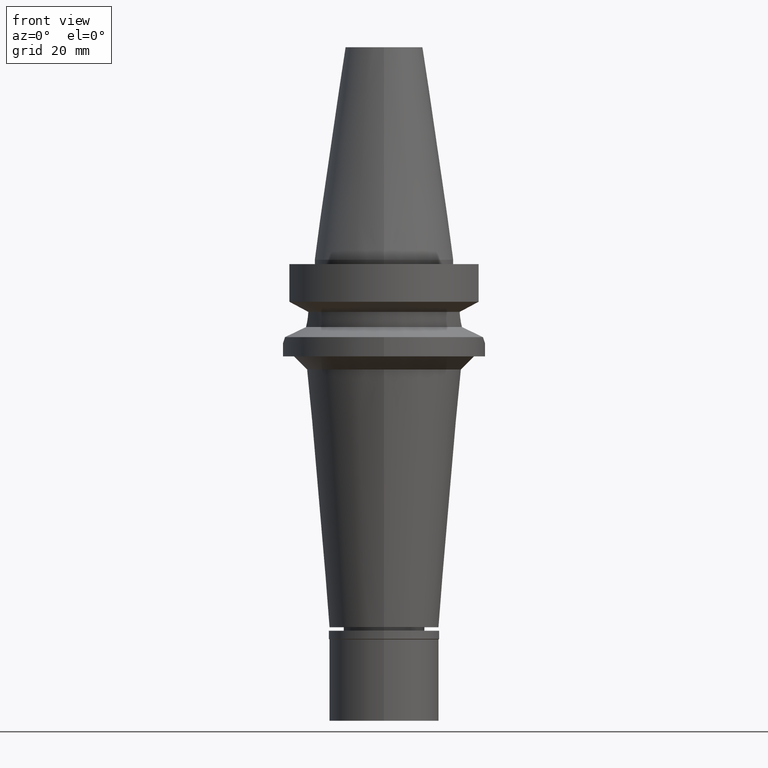
[diagram: clean part render]
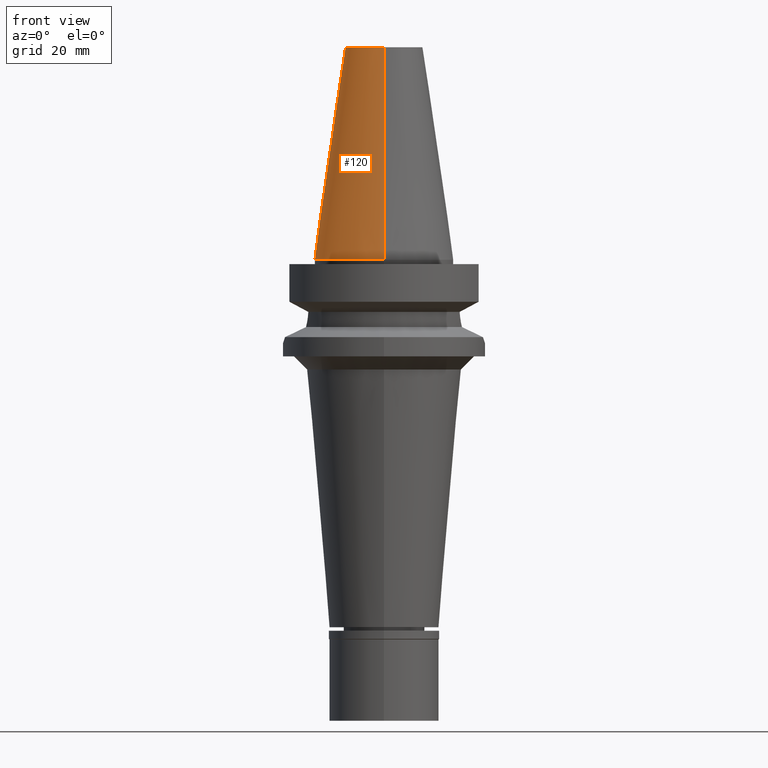
[diagram: same view with one face highlighted and labeled with its STEP entity id]
A machine part, front view. The second image highlights one B-rep face of the part: STEP entity #120.
In plain terms, the highlighted conical surface has half-angle 8.297 deg.
Its self-contained STEP definition (entity closure, byte-faithful):
#7 = EDGE_CURVE ( 'NONE', #2554, #3022, #360, .T. ) ;
#22 = CIRCLE ( 'NONE', #2929, 15.87500000000000000 ) ;
#27 = CARTESIAN_POINT ( 'NONE',  ( 0.0000000000000000000, -8.816791732783000768, 48.39999999999999858 ) ) ;
#45 = DIRECTION ( 'NONE',  ( 0.0000000000000000000, 0.1443043893539925626, -0.9895333461855498891 ) ) ;
#113 = VERTEX_POINT ( 'NONE', #2925 ) ;
#120 = ADVANCED_FACE ( 'NONE', ( #1758 ), #2560, .T. ) ;
#213 = VERTEX_POINT ( 'NONE', #536 ) ;
#324 = VECTOR ( 'NONE', #1599, 1000.000000000000114 ) ;
#360 = LINE ( 'NONE', #1795, #324 ) ;
#536 = CARTESIAN_POINT ( 'NONE',  ( 0.0000000000000000000, 8.816791732783000768, 48.39999999999999858 ) ) ;
#569 = EDGE_CURVE ( 'NONE', #3022, #113, #22, .T. ) ;
#689 = LINE ( 'NONE', #2858, #1481 ) ;
#761 = DIRECTION ( 'NONE',  ( 0.0000000000000000000, 0.0000000000000000000, -1.000000000000000000 ) ) ;
#809 = ORIENTED_EDGE ( 'NONE', *, *, #7, .F. ) ;
#864 = CARTESIAN_POINT ( 'NONE',  ( 0.0000000000000000000, -15.87500000000000000, -3.410605131648000255E-13 ) ) ;
#1037 = ORIENTED_EDGE ( 'NONE', *, *, #2398, .T. ) ;
#1228 = DIRECTION ( 'NONE',  ( 0.0000000000000000000, -1.000000000000000000, 0.0000000000000000000 ) ) ;
#1327 = CIRCLE ( 'NONE', #2949, 8.816791732783000768 ) ;
#1349 = DIRECTION ( 'NONE',  ( 0.0000000000000000000, -1.000000000000000000, 0.0000000000000000000 ) ) ;
#1481 = VECTOR ( 'NONE', #45, 1000.000000000000114 ) ;
#1521 = CARTESIAN_POINT ( 'NONE',  ( 0.0000000000000000000, 0.0000000000000000000, 24.19999999999999929 ) ) ;
#1584 = CARTESIAN_POINT ( 'NONE',  ( 0.0000000000000000000, 0.0000000000000000000, 48.39999999999999858 ) ) ;
#1599 = DIRECTION ( 'NONE',  ( 0.0000000000000000000, -0.1443043893539925626, -0.9895333461855498891 ) ) ;
#1747 = EDGE_CURVE ( 'NONE', #213, #113, #689, .T. ) ;
#1758 = FACE_OUTER_BOUND ( 'NONE', #2261, .T. ) ;
#1795 = CARTESIAN_POINT ( 'NONE',  ( 0.0000000000000000000, -8.816791732783000768, 48.39999999999999858 ) ) ;
#1994 = ORIENTED_EDGE ( 'NONE', *, *, #1747, .T. ) ;
#2261 = EDGE_LOOP ( 'NONE', ( #2326, #809, #1037, #1994 ) ) ;
#2326 = ORIENTED_EDGE ( 'NONE', *, *, #569, .F. ) ;
#2398 = EDGE_CURVE ( 'NONE', #2554, #213, #1327, .T. ) ;
#2509 = DIRECTION ( 'NONE',  ( 0.0000000000000000000, 0.0000000000000000000, -1.000000000000000000 ) ) ;
#2554 = VERTEX_POINT ( 'NONE', #27 ) ;
#2560 = CONICAL_SURFACE ( 'NONE', #2945, 12.34589586639000025, 0.1448099680379422438 ) ;
#2668 = CARTESIAN_POINT ( 'NONE',  ( 0.0000000000000000000, 0.0000000000000000000, -3.410605131648000255E-13 ) ) ;
#2686 = DIRECTION ( 'NONE',  ( 0.0000000000000000000, -1.000000000000000000, 0.0000000000000000000 ) ) ;
#2858 = CARTESIAN_POINT ( 'NONE',  ( 0.0000000000000000000, 8.816791732783000768, 48.39999999999999858 ) ) ;
#2922 = DIRECTION ( 'NONE',  ( 0.0000000000000000000, 0.0000000000000000000, -1.000000000000000000 ) ) ;
#2925 = CARTESIAN_POINT ( 'NONE',  ( 0.0000000000000000000, 15.87500000000000000, -1.136868377215999875E-13 ) ) ;
#2929 = AXIS2_PLACEMENT_3D ( 'NONE', #2668, #2922, #1228 ) ;
#2945 = AXIS2_PLACEMENT_3D ( 'NONE', #1521, #761, #2686 ) ;
#2949 = AXIS2_PLACEMENT_3D ( 'NONE', #1584, #2509, #1349 ) ;
#3022 = VERTEX_POINT ( 'NONE', #864 ) ;